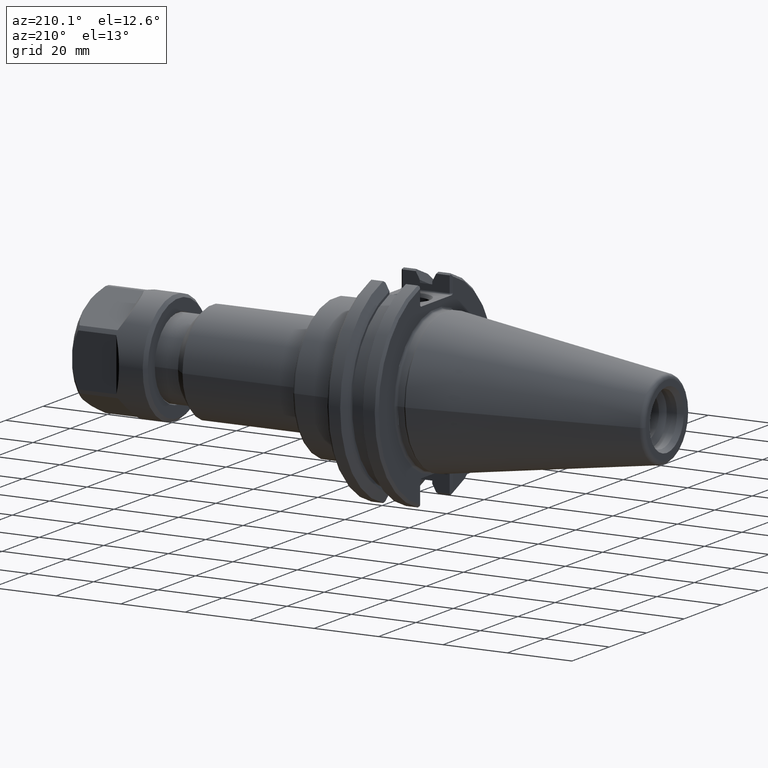
[diagram: clean part render]
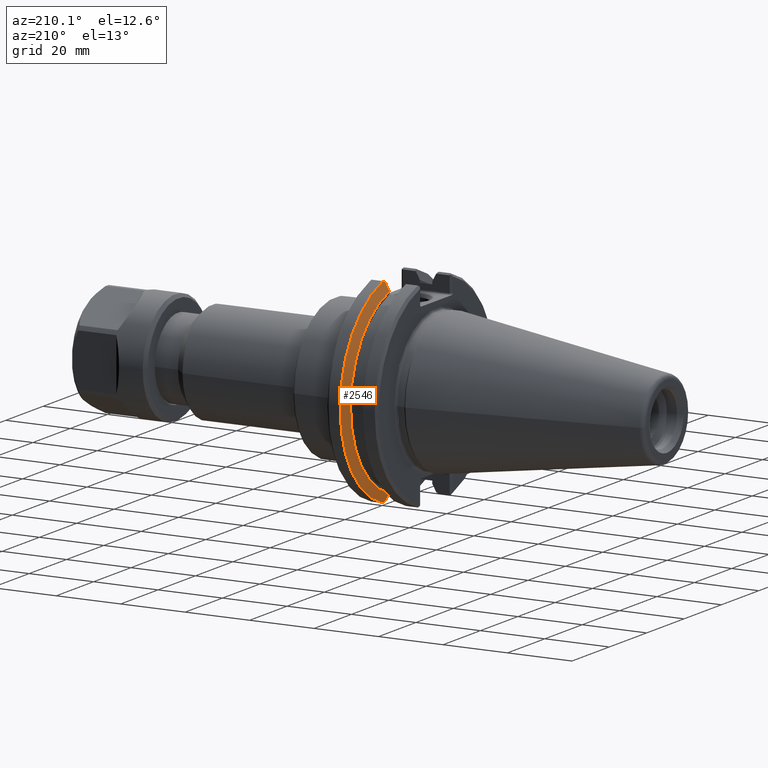
[diagram: same view with one face highlighted and labeled with its STEP entity id]
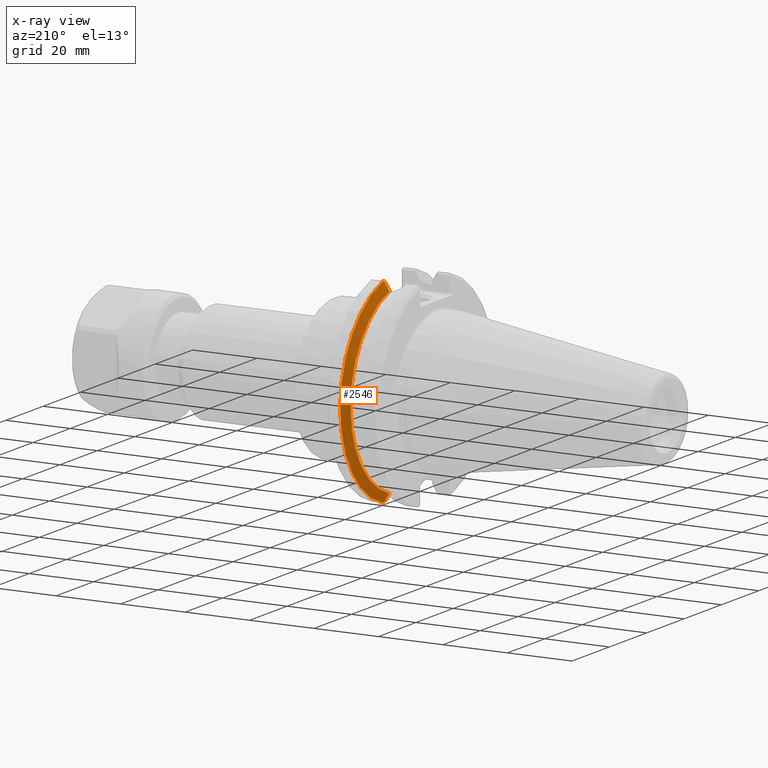
[diagram: x-ray of the same camera — body ghosted, the highlighted face saturated]
A machine part, auxiliary view. The second image highlights one B-rep face of the part: STEP entity #2546.
The next image is the same camera in x-ray: the body ghosted, the highlighted face saturated — about 0% of this face is hidden behind the body in this view.
In plain terms, the highlighted conical surface has half-angle 60 deg.
Its self-contained STEP definition (entity closure, byte-faithful):
#1019=CARTESIAN_POINT('',(0.563230740453661,0.320000000000281,1.18334597694527));
#1020=VERTEX_POINT('',#1019);
#1027=CARTESIAN_POINT('',(0.513849999999924,0.320000000000281,1.094499578944616));
#1028=VERTEX_POINT('',#1027);
#1029=CARTESIAN_POINT('',(0.51384999999979,0.320000000000281,1.094499578944375));
#1030=CARTESIAN_POINT('',(0.537577332827425,0.320000000000281,1.137317012232339));
#1031=CARTESIAN_POINT('',(0.563230740453661,0.320000000000281,1.18334597694527));
#1039=(BOUNDED_CURVE()B_SPLINE_CURVE(2,(#1029,#1030,#1031),.UNSPECIFIED.,.F.,.U.)B_SPLINE_CURVE_WITH_KNOTS((3,3),(0.0,0.260803090047858),.UNSPECIFIED.)CURVE()GEOMETRIC_REPRESENTATION_ITEM()RATIONAL_B_SPLINE_CURVE((1.0,1.000895493568113,1.000379364129248))REPRESENTATION_ITEM(''));
#1040=EDGE_CURVE('',#1028,#1020,#1039,.T.);
#1726=CARTESIAN_POINT('',(0.513849999999924,0.320000000000302,-1.09449957894461));
#1727=VERTEX_POINT('',#1726);
#1734=CARTESIAN_POINT('',(0.56323074045367,0.32000000000031,-1.183345976945278));
#1735=VERTEX_POINT('',#1734);
#1736=CARTESIAN_POINT('',(0.56323074045367,0.32000000000031,-1.183345976945278));
#1737=CARTESIAN_POINT('',(0.53757733282697,0.320000000000306,-1.137317012231516));
#1738=CARTESIAN_POINT('',(0.51384999999979,0.320000000000302,-1.094499578944369));
#1746=(BOUNDED_CURVE()B_SPLINE_CURVE(2,(#1736,#1737,#1738),.UNSPECIFIED.,.F.,.U.)B_SPLINE_CURVE_WITH_KNOTS((3,3),(0.07008906533153,0.330892155380645),.UNSPECIFIED.)CURVE()GEOMETRIC_REPRESENTATION_ITEM()RATIONAL_B_SPLINE_CURVE((1.000379364129154,1.000895493567906,1.0))REPRESENTATION_ITEM(''));
#1747=EDGE_CURVE('',#1735,#1727,#1746,.T.);
#2049=CARTESIAN_POINT('',(0.577173872226652,0.344098106798386,-1.201705659842612));
#2050=VERTEX_POINT('',#2049);
#2051=CARTESIAN_POINT('',(0.56323074045367,0.32000000000031,-1.183345976945278));
#2052=CARTESIAN_POINT('',(0.570095294562312,0.331931523167105,-1.1924362753517));
#2053=CARTESIAN_POINT('',(0.577173872227149,0.344098106799439,-1.201705659843396));
#2061=(BOUNDED_CURVE()B_SPLINE_CURVE(2,(#2051,#2052,#2053),.UNSPECIFIED.,.F.,.U.)B_SPLINE_CURVE_WITH_KNOTS((3,3),(0.310567973942218,0.391925496551485),.UNSPECIFIED.)CURVE()GEOMETRIC_REPRESENTATION_ITEM()RATIONAL_B_SPLINE_CURVE((1.000571469392811,1.000360586802784,1.0))REPRESENTATION_ITEM(''));
#2062=EDGE_CURVE('',#1735,#2050,#2061,.T.);
#2160=CARTESIAN_POINT('',(0.577173872226652,0.344098106798413,1.201705659842604));
#2161=VERTEX_POINT('',#2160);
#2162=CARTESIAN_POINT('',(0.577173872226652,0.0,0.0));
#2163=DIRECTION('',(1.0,1.624514E-013,0.0));
#2164=DIRECTION('',(-1.624514E-013,1.0,0.0));
#2165=AXIS2_PLACEMENT_3D('',#2162,#2163,#2164);
#2166=CIRCLE('',#2165,1.25);
#2167=EDGE_CURVE('',#2050,#2161,#2166,.T.);
#2263=CARTESIAN_POINT('',(0.577173872227002,0.344098106799196,1.201705659843201));
#2264=CARTESIAN_POINT('',(0.570095294562237,0.331931523166972,1.192436275351601));
#2265=CARTESIAN_POINT('',(0.563230740453661,0.320000000000281,1.18334597694527));
#2273=(BOUNDED_CURVE()B_SPLINE_CURVE(2,(#2263,#2264,#2265),.UNSPECIFIED.,.F.,.U.)B_SPLINE_CURVE_WITH_KNOTS((3,3),(0.0,0.081357522608523),.UNSPECIFIED.)CURVE()GEOMETRIC_REPRESENTATION_ITEM()RATIONAL_B_SPLINE_CURVE((1.0,1.000360586802825,1.000571469392878))REPRESENTATION_ITEM(''));
#2274=EDGE_CURVE('',#2161,#1020,#2273,.T.);
#2527=CARTESIAN_POINT('',(0.59790647304228,3.154247E-013,0.0));
#2528=DIRECTION('',(1.0,1.624514E-013,0.0));
#2529=DIRECTION('',(-1.624821E-013,1.0,0.0));
#2530=AXIS2_PLACEMENT_3D('',#2527,#2528,#2529);
#2531=CONICAL_SURFACE('',#2530,1.285909917985699,59.999999999990706);
#2532=ORIENTED_EDGE('',*,*,#2062,.F.);
#2533=ORIENTED_EDGE('',*,*,#1747,.T.);
#2534=CARTESIAN_POINT('',(0.513849999999976,3.017696E-013,0.0));
#2535=DIRECTION('',(-1.0,-1.624821E-013,0.0));
#2536=DIRECTION('',(-1.624821E-013,1.0,0.0));
#2537=AXIS2_PLACEMENT_3D('',#2534,#2535,#2536);
#2538=CIRCLE('',#2537,1.140319835971438);
#2539=EDGE_CURVE('',#1028,#1727,#2538,.T.);
#2540=ORIENTED_EDGE('',*,*,#2539,.F.);
#2541=ORIENTED_EDGE('',*,*,#1040,.T.);
#2542=ORIENTED_EDGE('',*,*,#2274,.F.);
#2543=ORIENTED_EDGE('',*,*,#2167,.F.);
#2544=EDGE_LOOP('',(#2532,#2533,#2540,#2541,#2542,#2543));
#2545=FACE_OUTER_BOUND('',#2544,.T.);
#2546=ADVANCED_FACE('',(#2545),#2531,.T.);